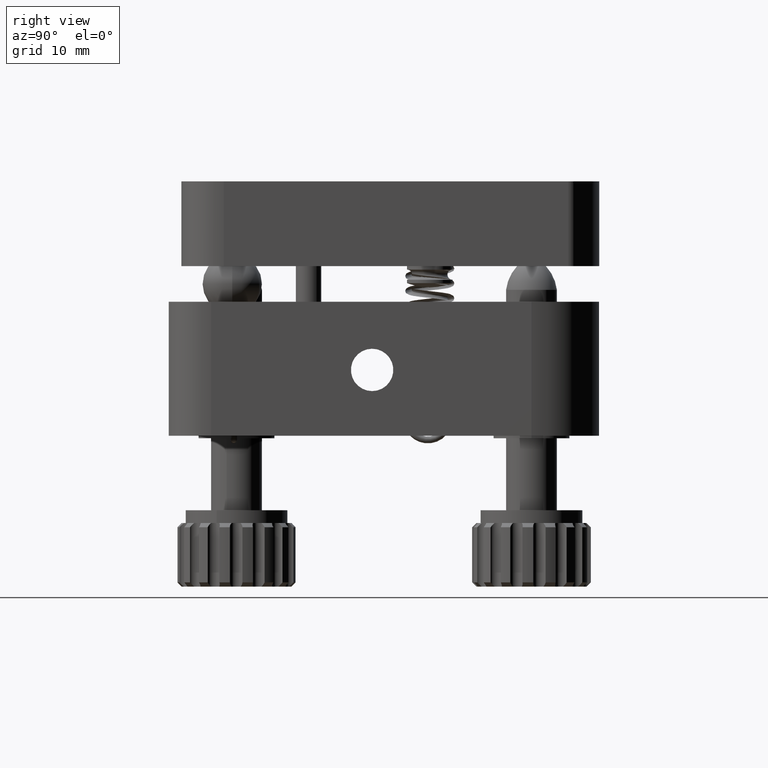
[diagram: clean part render]
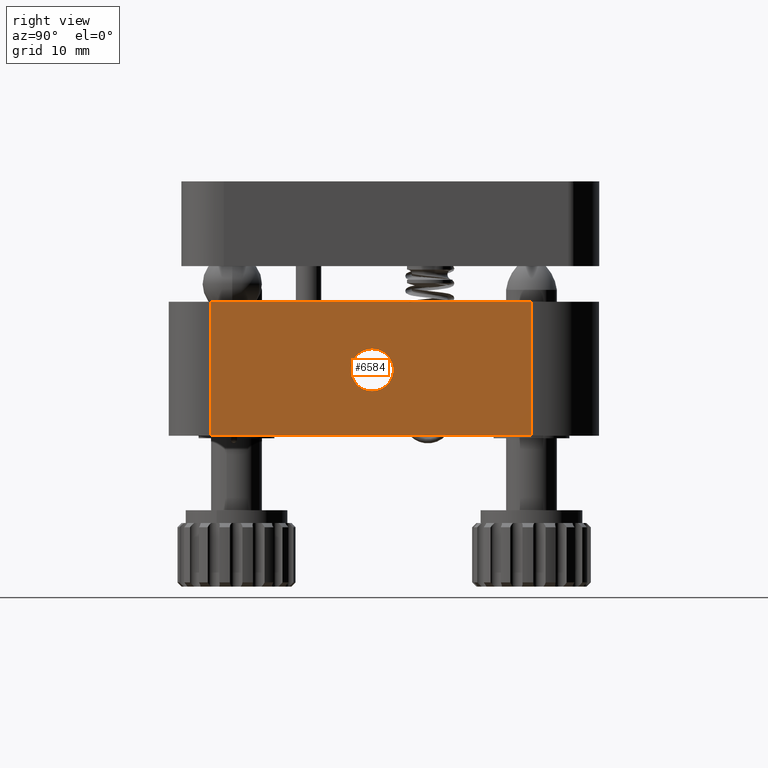
[diagram: same view with one face highlighted and labeled with its STEP entity id]
A machine part, right view. The second image highlights one B-rep face of the part: STEP entity #6584.
In plain terms, the highlighted planar face has unit normal (1, 0, -0).
Its self-contained STEP definition (entity closure, byte-faithful):
#12 = ORIENTED_EDGE ( 'NONE', *, *, #6081, .F. ) ;
#752 = VERTEX_POINT ( 'NONE', #13979 ) ;
#1766 = ORIENTED_EDGE ( 'NONE', *, *, #33817, .F. ) ;
#2489 = AXIS2_PLACEMENT_3D ( 'NONE', #22479, #22454, #22242 ) ;
#2897 = DIRECTION ( 'NONE',  ( 0.0000000000000000000, 0.0000000000000000000, -1.000000000000000000 ) ) ;
#3391 = FACE_BOUND ( 'NONE', #6323, .T. ) ;
#3537 = VERTEX_POINT ( 'NONE', #12460 ) ;
#4533 = DIRECTION ( 'NONE',  ( 0.0000000000000000000, 0.0000000000000000000, -1.000000000000000000 ) ) ;
#4540 = CARTESIAN_POINT ( 'NONE',  ( 42.69393658312055400, 20.91778669584327900, 22.06366457255799000 ) ) ;
#5920 = CIRCLE ( 'NONE', #2489, 2.499999999999988500 ) ;
#6081 = EDGE_CURVE ( 'NONE', #13031, #35129, #5920, .T. ) ;
#6323 = EDGE_LOOP ( 'NONE', ( #12, #26851 ) ) ;
#6584 = ADVANCED_FACE ( 'NONE', ( #3391, #18510 ), #15050, .T. ) ;
#6721 = CARTESIAN_POINT ( 'NONE',  ( 42.69393658312055400, 39.91778669584324000, 29.82527957125741800 ) ) ;
#7916 = CIRCLE ( 'NONE', #29549, 2.499999999999988500 ) ;
#7939 = VECTOR ( 'NONE', #2897, 1000.000000000000000 ) ;
#8532 = DIRECTION ( 'NONE',  ( 0.0000000000000000000, 0.0000000000000000000, 1.000000000000000000 ) ) ;
#8971 = CARTESIAN_POINT ( 'NONE',  ( 42.69393658312055400, 20.91778669584327900, 37.86366457255799400 ) ) ;
#9187 = VECTOR ( 'NONE', #28789, 1000.000000000000000 ) ;
#9286 = DIRECTION ( 'NONE',  ( 1.000000000000000000, 0.0000000000000000000, -0.0000000000000000000 ) ) ;
#9562 = DIRECTION ( 'NONE',  ( 0.0000000000000000000, 0.0000000000000000000, -1.000000000000000000 ) ) ;
#9770 = CARTESIAN_POINT ( 'NONE',  ( 42.69393658312055400, 20.91778669584327900, 37.86366457255799400 ) ) ;
#10247 = EDGE_CURVE ( 'NONE', #30107, #3537, #32615, .T. ) ;
#10610 = CARTESIAN_POINT ( 'NONE',  ( 42.69393658312055400, 58.71778669584323800, 37.86366457255799400 ) ) ;
#10651 = LINE ( 'NONE', #4540, #17335 ) ;
#11622 = CARTESIAN_POINT ( 'NONE',  ( 42.69393658312055400, 39.91778669584324000, 27.32527957125743300 ) ) ;
#12312 = VERTEX_POINT ( 'NONE', #34729 ) ;
#12460 = CARTESIAN_POINT ( 'NONE',  ( 42.69393658312055400, 58.71778669584323800, 22.06366457255799000 ) ) ;
#13031 = VERTEX_POINT ( 'NONE', #11622 ) ;
#13979 = CARTESIAN_POINT ( 'NONE',  ( 42.69393658312055400, 20.91778669584327900, 37.86366457255799400 ) ) ;
#15050 = PLANE ( 'NONE',  #15985 ) ;
#15985 = AXIS2_PLACEMENT_3D ( 'NONE', #9770, #9286, #8532 ) ;
#17335 = VECTOR ( 'NONE', #24430, 1000.000000000000000 ) ;
#17415 = CARTESIAN_POINT ( 'NONE',  ( 42.69393658312055400, 39.91778669584324000, 32.32527957125741100 ) ) ;
#17646 = VECTOR ( 'NONE', #4533, 1000.000000000000000 ) ;
#18510 = FACE_OUTER_BOUND ( 'NONE', #35393, .T. ) ;
#18879 = EDGE_CURVE ( 'NONE', #35129, #13031, #7916, .T. ) ;
#19901 = CARTESIAN_POINT ( 'NONE',  ( 42.69393658312055400, 20.91778669584327900, 37.86366457255799400 ) ) ;
#21399 = ORIENTED_EDGE ( 'NONE', *, *, #32377, .T. ) ;
#21441 = ORIENTED_EDGE ( 'NONE', *, *, #10247, .F. ) ;
#21557 = CARTESIAN_POINT ( 'NONE',  ( 42.69393658312055400, 58.71778669584323800, 37.86366457255799400 ) ) ;
#22242 = DIRECTION ( 'NONE',  ( 0.0000000000000000000, 0.0000000000000000000, -1.000000000000000000 ) ) ;
#22454 = DIRECTION ( 'NONE',  ( 1.000000000000000000, -0.0000000000000000000, -0.0000000000000000000 ) ) ;
#22479 = CARTESIAN_POINT ( 'NONE',  ( 42.69393658312055400, 39.91778669584324000, 29.82527957125741800 ) ) ;
#24313 = LINE ( 'NONE', #8971, #9187 ) ;
#24430 = DIRECTION ( 'NONE',  ( 0.0000000000000000000, 1.000000000000000000, 0.0000000000000000000 ) ) ;
#26566 = DIRECTION ( 'NONE',  ( 1.000000000000000000, -0.0000000000000000000, -0.0000000000000000000 ) ) ;
#26851 = ORIENTED_EDGE ( 'NONE', *, *, #18879, .F. ) ;
#27003 = LINE ( 'NONE', #19901, #7939 ) ;
#27449 = ORIENTED_EDGE ( 'NONE', *, *, #33320, .T. ) ;
#28789 = DIRECTION ( 'NONE',  ( 0.0000000000000000000, 1.000000000000000000, 0.0000000000000000000 ) ) ;
#29549 = AXIS2_PLACEMENT_3D ( 'NONE', #6721, #26566, #9562 ) ;
#30107 = VERTEX_POINT ( 'NONE', #10610 ) ;
#32377 = EDGE_CURVE ( 'NONE', #12312, #3537, #10651, .T. ) ;
#32615 = LINE ( 'NONE', #21557, #17646 ) ;
#33320 = EDGE_CURVE ( 'NONE', #752, #12312, #27003, .T. ) ;
#33817 = EDGE_CURVE ( 'NONE', #752, #30107, #24313, .T. ) ;
#34729 = CARTESIAN_POINT ( 'NONE',  ( 42.69393658312055400, 20.91778669584327900, 22.06366457255799000 ) ) ;
#35129 = VERTEX_POINT ( 'NONE', #17415 ) ;
#35393 = EDGE_LOOP ( 'NONE', ( #21399, #21441, #1766, #27449 ) ) ;